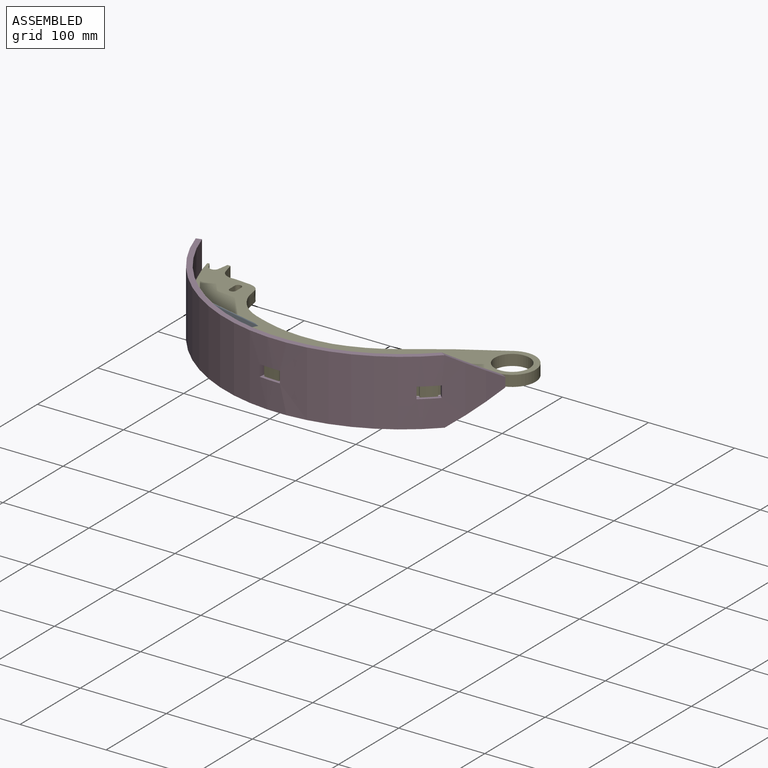
[diagram: assembled view]
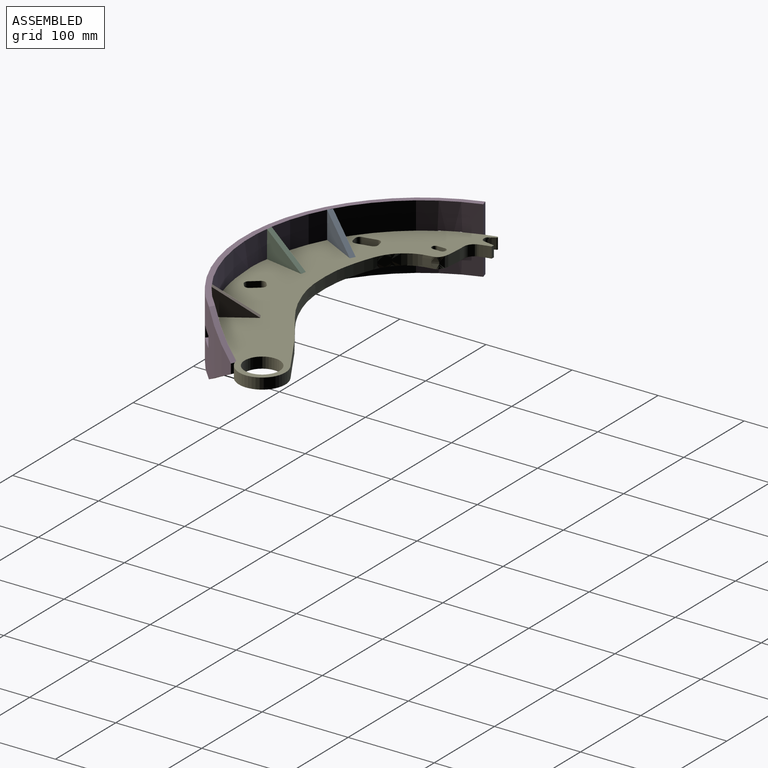
[diagram: assembled view, second angle]
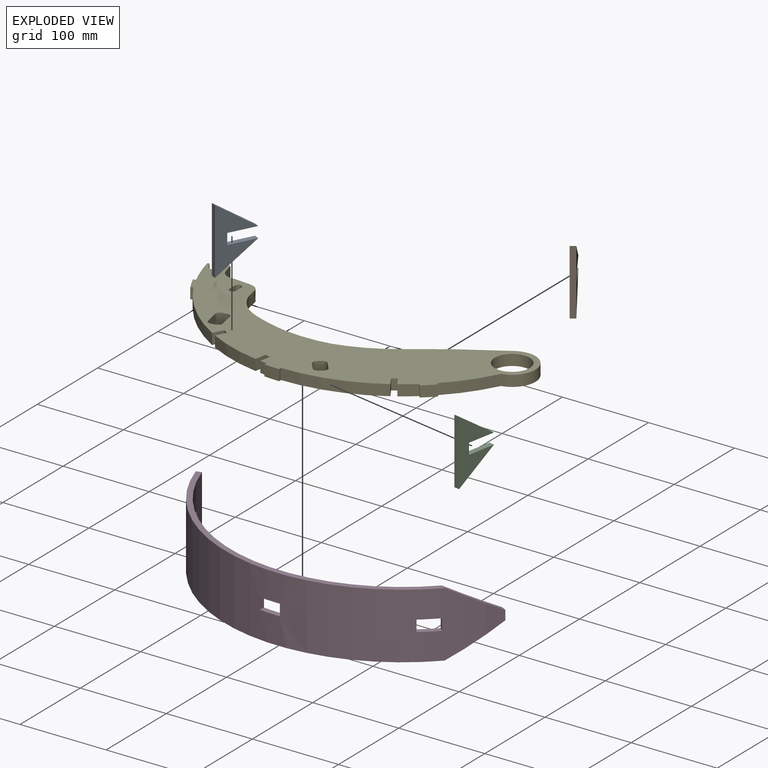
[diagram: exploded view]
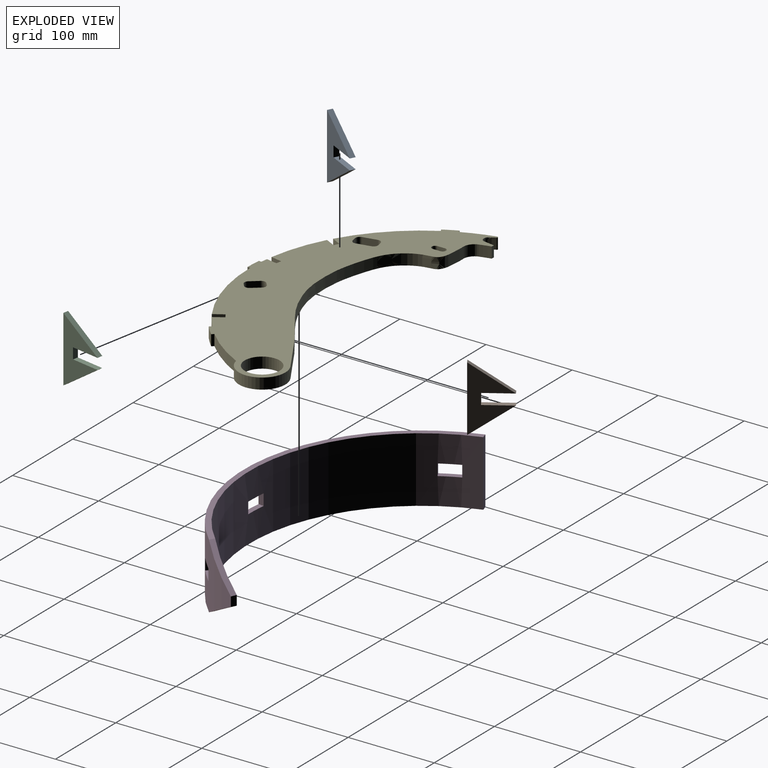
[diagram: exploded view, second angle]
ASSEMBLY  parts=5 mates=4
PART A: 8 faces, bbox 27x44.3x76.2 mm
  f0: plane 76.2x5.64mm, normal (-0.46,-0.89,0), area 483.9mm2, adj f1,f5,f6,f7
  f1: plane 44.28x31.75mm, normal (0.26,0.5,0.83), area 357.8mm2, adj f0,f2,f6,f7
  f2: plane 32.57x20.95mm, normal (0,0,-1), area 212mm2, adj f1,f3,f6,f7
  f3: plane 12.7x5.64mm, normal (0.46,0.89,0), area 80.6mm2, adj f2,f4,f6,f7
  f4: plane 32.57x20.95mm, normal (0,0,1), area 212mm2, adj f3,f5,f6,f7
  f5: plane 44.28x31.75mm, normal (0.26,0.5,-0.83), area 357.8mm2, adj f0,f4,f6,f7
  f6: plane 76.2x41.37mm, normal (-0.89,0.46,0), area 1645.5mm2, adj f0,f1,f2,f3,f4,f5
  f7: plane 76.2x41.37mm, normal (0.89,-0.46,0), area 1645.5mm2, adj f0,f1,f2,f3,f4,f5
PART B: same geometry as A
PART C: same geometry as A
PART D: 20 faces, bbox 380.4x145x76.2 mm
  f0: cylinder r=205.99mm len=380.4mm, axis (0,0,-1), area 34193.9mm2, adj f1,f3,f4,f5,f6,f7,f8,f9
  f1: plane 11.32x5.68mm, normal (0.45,0.89,0), area 70.6mm2, adj f0,f2,f6,f7
  f2: cylinder r=199.64mm len=368.65mm, axis (0,0,-1), area 33088.6mm2, adj f1,f3,f4,f5,f6,f7,f8,f9
  f3: plane 76.2x6.07mm, normal (-0.29,0.96,0), area 483.9mm2, adj f0,f2,f4,f5
  f4: plane 344.95x145mm, normal (0,0,1), area 2657.9mm2, adj f0,f2,f3,f6
  f5: plane 344.95x145mm, normal (0,0,-1), area 2657.9mm2, adj f0,f2,f3,f7
  f6: plane 53.16x41.12mm, normal (0.24,0.41,0.88), area 443.2mm2, adj f0,f1,f2,f4
  f7: plane 53.16x41.12mm, normal (0.24,0.41,-0.88), area 443.2mm2, adj f0,f1,f2,f5
  f8: plane 13.21x4.89mm, normal (0.77,0.64,0), area 83.9mm2, adj f0,f2,f10,f11
  f9: plane 13.21x4.52mm, normal (-0.71,-0.7,0), area 83.9mm2, adj f0,f2,f10,f11
  f10: plane 22.08x20.83mm, normal (0,0,-1), area 152.7mm2, adj f0,f2,f8,f9
  f11: plane 22.08x20.83mm, normal (0,0,1), area 152.7mm2, adj f0,f2,f8,f9
  f12: plane 13.21x6.32mm, normal (1,-0.09,0), area 83.9mm2, adj f0,f2,f14,f15
  f13: plane 13.21x6.35mm, normal (-1,0.01,0), area 83.9mm2, adj f0,f2,f14,f15
  f14: plane 24.32x7.55mm, normal (0,0,-1), area 152.7mm2, adj f0,f2,f12,f13
  f15: plane 24.32x7.55mm, normal (0,0,1), area 152.7mm2, adj f0,f2,f12,f13
  f16: plane 13.21x5.52mm, normal (-0.49,0.87,0), area 83.9mm2, adj f0,f2,f18,f19
  f17: plane 13.21x5.77mm, normal (0.42,-0.91,0), area 83.9mm2, adj f0,f2,f18,f19
  f18: plane 24.29x16.6mm, normal (0,0,-1), area 152.7mm2, adj f0,f2,f16,f17
  f19: plane 24.29x16.6mm, normal (0,0,1), area 152.7mm2, adj f0,f2,f16,f17
PART E: 59 faces, bbox 393.4x165.7x12.7 mm
  f0: cylinder r=199.64mm len=73.95mm, axis (0,0,-1), area 1337.6mm2, adj f20,f39,f40,f54
  f1: cylinder r=199.64mm len=61.88mm, axis (0,0,-1), area 834.4mm2, adj f39,f40,f51,f55
  f2: cylinder r=199.64mm len=106.3mm, axis (0,0,-1), area 1420.6mm2, adj f24,f39,f40,f57
  f3: plane 12.7x2.45mm, normal (-0.77,-0.64,0), area 40.3mm2, adj f4,f38,f39,f40
  f4: cylinder r=202.82mm len=13.12mm, axis (0,0,-1), area 224.8mm2, adj f3,f5,f39,f40
  f5: plane 12.7x2.26mm, normal (0.71,0.7,0), area 40.3mm2, adj f4,f6,f39,f40
  f6: cylinder r=199.64mm len=51.63mm, axis (0,0,-1), area 815.7mm2, adj f5,f7,f39,f40
  f7: cylinder r=26.99mm len=53.4mm, axis (0,0,-1), area 1192.8mm2, adj f6,f8,f39,f40
  f8: plane 48.59x29.47mm, normal (-0.52,0.86,0), area 721.7mm2, adj f7,f9,f39,f40
  f9: extruded ~260.71x69.18mm, area 3918.4mm2, adj f8,f10,f39,f40
  f10: plane 12.7x6.11mm, normal (0,1,0), area 77.6mm2, adj f9,f39,f40,f41
  f11: cylinder r=176.86mm len=12.94mm, axis (0,0,-1), area 170mm2, adj f12,f39,f40,f41
  f12: plane 12.7x3.53mm, normal (0,1,0), area 44.8mm2, adj f11,f13,f39,f40
  f13: plane 12.7x5.08mm, normal (-0.99,0.15,0), area 65.2mm2, adj f12,f14,f39,f40
  f14: extruded ~12.7x12.46mm, area 291.7mm2, adj f13,f15,f39,f40
  f15: plane 12.7x4.14mm, normal (0.88,0.48,0), area 60.1mm2, adj f14,f16,f39,f40
  f16: cylinder r=1.27mm len=12.7mm, axis (0,0,-1), area 46.4mm2, adj f15,f17,f39,f40
  f17: cylinder r=199.64mm len=35.68mm, axis (0,0,-1), area 480.5mm2, adj f16,f18,f39,f40
  f18: plane 12.7x2.89mm, normal (-0.42,0.91,0), area 40.3mm2, adj f17,f19,f39,f40
  f19: cylinder r=202.82mm len=15.75mm, axis (0,0,-1), area 224.8mm2, adj f18,f20,f39,f40
  f20: plane 12.7x2.76mm, normal (0.49,-0.87,0), area 40.3mm2, adj f0,f19,f39,f40
  f21: cylinder r=199.64mm len=12.7mm, axis (0,0,-1), area 100.5mm2, adj f22,f39,f40,f52
  f22: plane 12.7x3.16mm, normal (-1,0.09,0), area 40.3mm2, adj f21,f23,f39,f40
  f23: cylinder r=202.82mm len=17.67mm, axis (0,0,-1), area 224.8mm2, adj f22,f24,f39,f40
  f24: plane 12.7x3.18mm, normal (1,-0.01,0), area 40.3mm2, adj f2,f23,f39,f40
  f25: cylinder r=3.87mm len=12.7mm, axis (0,0,-1), area 154.5mm2, adj f26,f35,f39,f40
  f26: plane 12.7x8.67mm, normal (-1,0,0), area 110.2mm2, adj f25,f27,f39,f40
  f27: cylinder r=3.87mm len=12.7mm, axis (0,0,-1), area 154.5mm2, adj f26,f35,f39,f40
  f28: plane 16.12x12.7mm, normal (-0.98,-0.21,0), area 209.2mm2, adj f39,f40,f46,f49
  f29: plane 12.7x5.21mm, normal (-0.21,0.98,0), area 67.6mm2, adj f39,f40,f46,f47
  f30: plane 16.12x12.7mm, normal (0.98,0.21,0), area 209.2mm2, adj f39,f40,f47,f48
  f31: plane 12.7x3.71mm, normal (0.65,-0.76,0), area 61.7mm2, adj f39,f40,f42,f45
  f32: plane 12.7x9.09mm, normal (-0.78,-0.63,0), area 148.5mm2, adj f39,f40,f42,f43
  f33: plane 12.7x3.78mm, normal (-0.63,0.78,0), area 61.7mm2, adj f39,f40,f43,f44
  f34: cylinder r=20.32mm len=40.64mm, axis (0,0,-1), area 1621.5mm2, adj f39,f40
  f35: plane 12.7x8.67mm, normal (1,0,0), area 110.2mm2, adj f25,f27,f39,f40
  f36: plane 12.7x5.21mm, normal (0.21,-0.98,0), area 67.6mm2, adj f39,f40,f48,f49
  f37: plane 12.7x9mm, normal (0.78,0.63,0), area 147.2mm2, adj f39,f40,f44,f45
  f38: cylinder r=199.64mm len=16.78mm, axis (0,0,-1), area 265.6mm2, adj f3,f39,f40,f58
  f39: plane 393.37x165.74mm, normal (0,0,1), area 26059.9mm2, adj f0,f1,f2,f3,f4,f5,f6,f7
  f40: plane 393.37x165.74mm, normal (0,0,-1), area 26059.9mm2, adj f0,f1,f2,f3,f4,f5,f6,f7
  f41: cylinder r=12.7mm len=12.7mm, axis (0,0,-1), area 205.4mm2, adj f10,f11,f39,f40
  f42: cylinder r=5.08mm len=12.7mm, axis (0,0,1), area 102.7mm2, adj f31,f32,f39,f40
  f43: cylinder r=5.08mm len=12.7mm, axis (0,0,1), area 101.3mm2, adj f32,f33,f39,f40
  f44: cylinder r=5.08mm len=12.7mm, axis (0,0,1), area 101.3mm2, adj f33,f37,f39,f40
  f45: cylinder r=5.08mm len=12.7mm, axis (0,0,1), area 100mm2, adj f31,f37,f39,f40
  f46: cylinder r=5.08mm len=12.7mm, axis (0,0,1), area 101.3mm2, adj f28,f29,f39,f40
  f47: cylinder r=5.08mm len=12.7mm, axis (0,0,1), area 101.3mm2, adj f29,f30,f39,f40
  f48: cylinder r=5.08mm len=12.7mm, axis (0,0,1), area 101.3mm2, adj f30,f36,f39,f40
  f49: cylinder r=5.08mm len=12.7mm, axis (0,0,1), area 101.3mm2, adj f28,f36,f39,f40
  f50: plane 12.7x6.24mm, normal (-0.19,-0.98,0), area 80.6mm2, adj f39,f40,f51,f52
  f51: plane 12.94x12.7mm, normal (0.98,-0.19,0), area 167.2mm2, adj f1,f39,f40,f50
  f52: plane 12.71x12.7mm, normal (-0.98,0.19,0), area 164.2mm2, adj f21,f39,f40,f50
  f53: plane 12.7x5.64mm, normal (-0.46,-0.89,0), area 80.6mm2, adj f39,f40,f54,f55
  f54: plane 12.7x11.52mm, normal (0.89,-0.46,0), area 164.6mm2, adj f0,f39,f40,f53
  f55: plane 12.7x11.71mm, normal (-0.89,0.46,0), area 167.3mm2, adj f1,f39,f40,f53
  f56: plane 12.7x5.56mm, normal (0.54,-0.84,0), area 83.9mm2, adj f39,f40,f57,f58
  f57: plane 12.7x11.1mm, normal (0.84,0.54,0), area 167.4mm2, adj f2,f39,f40,f56
  f58: plane 12.7x11.1mm, normal (-0.84,-0.54,0), area 167.4mm2, adj f38,f39,f40,f56
PLACE A t=(-19.65,-77.69,-138.45)mm
PLACE B rot(axis=(0,0,1),59.9deg) t=(-49.46,104.35,-138.45)mm
PLACE C rot(axis=(0,0,1),16.6deg) t=(3.7,-28.3,-138.45)mm
PLACE D t=(-19.65,-77.69,-138.45)mm
PLACE E t=(-19.65,-77.69,-138.45)mm
MATE fastened C.f7 <-> E.f52  axis (0.98,-0.19,0) through (-218.66,-217.4,-138.45)mm
MATE fastened E.f55 <-> A.f7  axis (-0.89,0.46,0) through (-286.82,-195.27,-138.45)mm
MATE fastened E.f0 <-> D.f0  axis (0,0,-1) through (-192.08,-19.54,-138.45)mm
MATE fastened B.f7 <-> E.f58  axis (0.84,0.54,0) through (-81.54,-185.79,-138.45)mm
